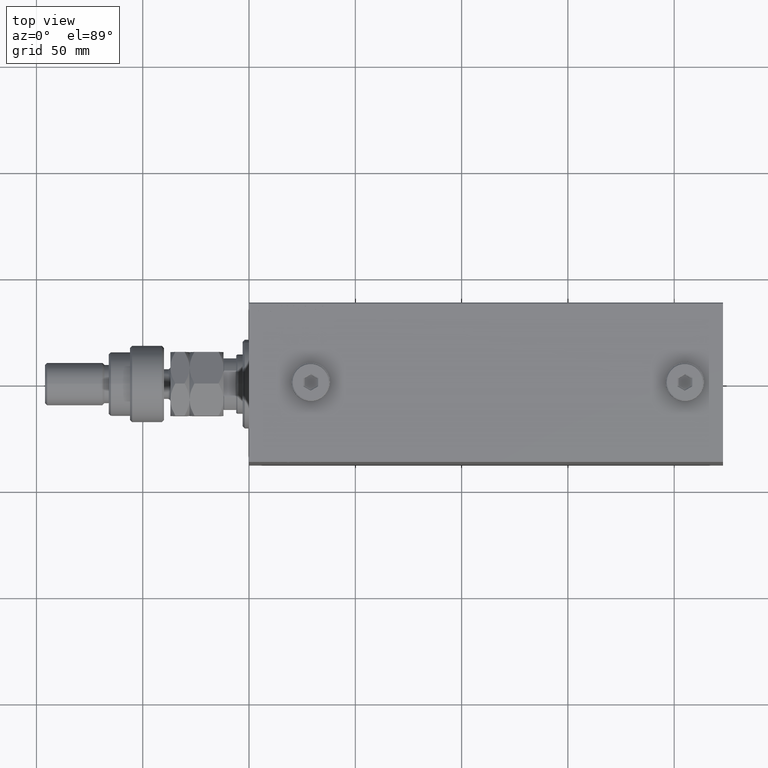
[diagram: clean part render]
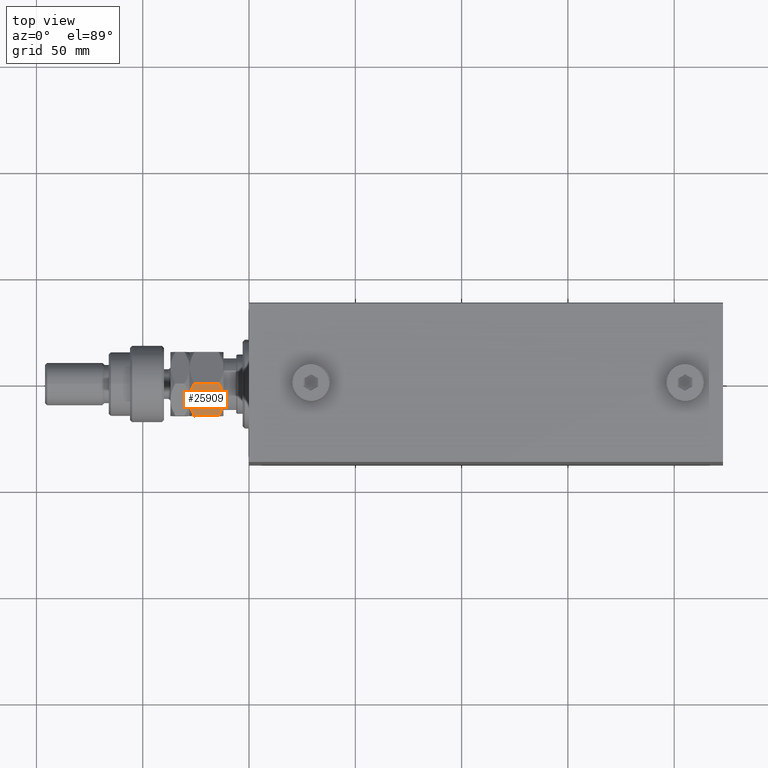
[diagram: same view with one face highlighted and labeled with its STEP entity id]
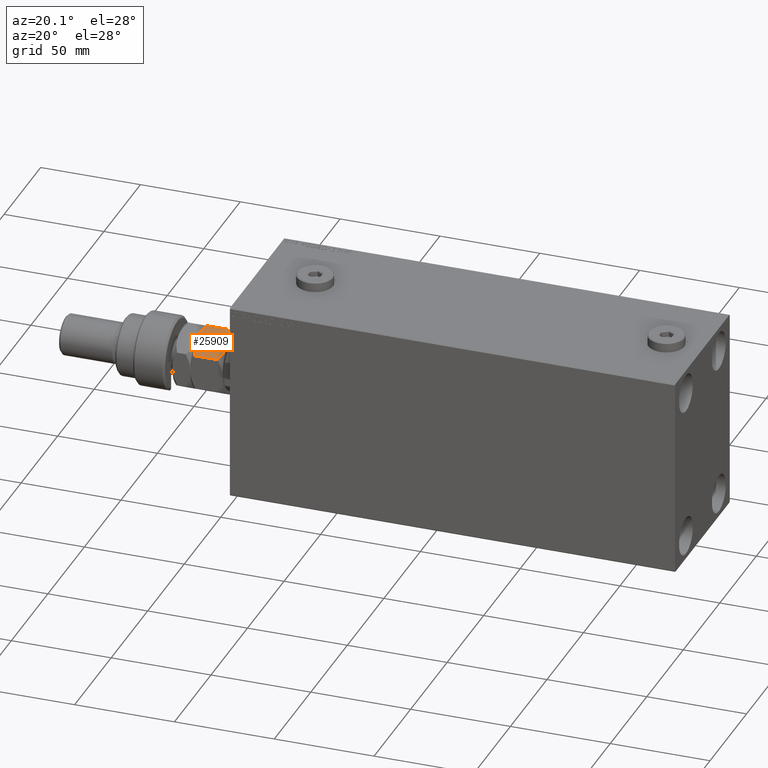
[diagram: same view with one face highlighted and labeled with its STEP entity id]
A machine part, top view. The second image highlights one B-rep face of the part: STEP entity #25909.
A second angle (auxiliary view) of the same face is appended — the face is thin or edge-on in the first view.
In plain terms, the highlighted planar face has unit normal (0, 0.5, -0.866).
Its self-contained STEP definition (entity closure, byte-faithful):
#139 = VERTEX_POINT ( 'NONE', #46562 ) ;
#825 = CARTESIAN_POINT ( 'NONE',  ( 15.00000000000000000, -7.301344312447432650, 14.32986304731390881 ) ) ;
#1970 = CARTESIAN_POINT ( 'NONE',  ( 14.99999999999999822, -3.735400403320778384, 0.4426250994506710779 ) ) ;
#2700 = CARTESIAN_POINT ( 'NONE',  ( 15.00000000000000178, -1.890862710942016411, 0.1142538058331598050 ) ) ;
#3649 = CARTESIAN_POINT ( 'NONE',  ( 15.00000000000000000, 5.178726290334375371, 15.14627300035555990 ) ) ;
#3758 = CARTESIAN_POINT ( 'NONE',  ( 15.00000000000000000, 8.660254037844389075, 2.320508075688765715 ) ) ;
#5622 = CARTESIAN_POINT ( 'NONE',  ( 15.00000000000000000, 0.000000000000000000, 0.000000000000000000 ) ) ;
#5880 = EDGE_CURVE ( 'NONE', #36856, #23334, #26425, .T. ) ;
#6170 = CARTESIAN_POINT ( 'NONE',  ( 15.00000000000000000, 1.890862710942010638, 15.88574619416683831 ) ) ;
#8204 = B_SPLINE_CURVE_WITH_KNOTS ( 'NONE', 3,
 ( #19511, #15850, #30957, #27538, #45809, #12440, #38975, #5622 ),
 .UNSPECIFIED., .F., .F.,
 ( 4, 2, 2, 4 ),
 ( 0.02387628527307377596, 0.02613482112973648797, 0.02839335698639919650, 0.03291042869972461704 ),
 .UNSPECIFIED. ) ;
#8370 = CARTESIAN_POINT ( 'NONE',  ( 15.00000000000000178, -5.891877557735398341, 14.89726549906047737 ) ) ;
#8534 = FACE_OUTER_BOUND ( 'NONE', #40603, .T. ) ;
#8611 = CARTESIAN_POINT ( 'NONE',  ( 15.00000000000000178, -7.987590979791838741, 14.01582345333751967 ) ) ;
#9739 = B_SPLINE_CURVE_WITH_KNOTS ( 'NONE', 3,
 ( #15091, #26056, #18990, #39518, #6170, #22396, #40668, #3649, #14610, #40908, #47072, #29726 ),
 .UNSPECIFIED., .F., .F.,
 ( 4, 2, 2, 2, 2, 4 ),
 ( 0.03291042869972460316, 0.03403908204310901464, 0.03516773538649342612, 0.03742504207326225601, 0.03968234876003107897, 0.04193965544679990887 ),
 .UNSPECIFIED. ) ;
#10014 = CARTESIAN_POINT ( 'NONE',  ( 15.00000000000000533, -7.300329060372333423, 1.669694153640836065 ) ) ;
#10485 = CARTESIAN_POINT ( 'NONE',  ( 15.00000000000000178, -0.3816858437404750393, -1.673737103774498062E-15 ) ) ;
#10603 = VERTEX_POINT ( 'NONE', #3758 ) ;
#10655 = EDGE_CURVE ( 'NONE', #38981, #47701, #25443, .T. ) ;
#10800 = ORIENTED_EDGE ( 'NONE', *, *, #10655, .F. ) ;
#11412 = CARTESIAN_POINT ( 'NONE',  ( 15.00000000000000000, -8.660254037844389075, 13.67949192431123961 ) ) ;
#12075 = CARTESIAN_POINT ( 'NONE',  ( 15.00000000000000000, -8.660254037844389075, 2.320508075688767047 ) ) ;
#12183 = PLANE ( 'NONE',  #43472 ) ;
#12440 = CARTESIAN_POINT ( 'NONE',  ( 15.00000000000000000, 3.008020699068711501, 0.2357602839062953870 ) ) ;
#12984 = VECTOR ( 'NONE', #14732, 1000.000000000000000 ) ;
#14610 = CARTESIAN_POINT ( 'NONE',  ( 15.00000000000000178, 5.890999289811421846, 14.89758491968458465 ) ) ;
#14732 = DIRECTION ( 'NONE',  ( -0.000000000000000000, -0.000000000000000000, -1.000000000000000000 ) ) ;
#15091 = CARTESIAN_POINT ( 'NONE',  ( 14.99999999999999645, 0.000000000000000000, 16.00000000000000000 ) ) ;
#15205 = CARTESIAN_POINT ( 'NONE',  ( 15.00000000000000000, 8.660254037844389075, 16.00000000000000000 ) ) ;
#15395 = EDGE_CURVE ( 'NONE', #47701, #139, #9739, .T. ) ;
#15680 = CARTESIAN_POINT ( 'NONE',  ( 15.00000000000000355, -5.176035048062459509, 15.14719616142216196 ) ) ;
#15850 = CARTESIAN_POINT ( 'NONE',  ( 15.00000000000000000, 7.987590979791842294, 1.984176546662486773 ) ) ;
#16056 = ORIENTED_EDGE ( 'NONE', *, *, #39546, .F. ) ;
#16086 = EDGE_CURVE ( 'NONE', #38981, #23334, #47381, .T. ) ;
#16596 = CARTESIAN_POINT ( 'NONE',  ( 15.00000000000000000, 0.000000000000000000, 0.000000000000000000 ) ) ;
#17803 = CARTESIAN_POINT ( 'NONE',  ( 15.00000000000000000, -5.890999289811427175, 1.102415080315421125 ) ) ;
#18990 = CARTESIAN_POINT ( 'NONE',  ( 15.00000000000000355, 0.7629267201675408172, 15.98531533915807934 ) ) ;
#19339 = CARTESIAN_POINT ( 'NONE',  ( 15.00000000000000000, -8.660254037844389075, 13.67949192431123961 ) ) ;
#19511 = CARTESIAN_POINT ( 'NONE',  ( 15.00000000000000000, 8.660254037844389075, 2.320508075688765715 ) ) ;
#21531 = VECTOR ( 'NONE', #43734, 1000.000000000000000 ) ;
#22396 = CARTESIAN_POINT ( 'NONE',  ( 15.00000000000000000, 3.004330627448758673, 15.71971113554880972 ) ) ;
#23334 = VERTEX_POINT ( 'NONE', #12075 ) ;
#24871 = CARTESIAN_POINT ( 'NONE',  ( 15.00000000000000000, -8.660254037844389075, 2.320508075688767047 ) ) ;
#25344 = CARTESIAN_POINT ( 'NONE',  ( 15.00000000000000000, -0.7629267201675461463, 0.01468466084192619932 ) ) ;
#25443 = B_SPLINE_CURVE_WITH_KNOTS ( 'NONE', 3,
 ( #19339, #8611, #825, #8370, #15680, #34674, #30557, #38320 ),
 .UNSPECIFIED., .F., .F.,
 ( 4, 2, 2, 4 ),
 ( 0.02387628527307377943, 0.02613482112973648450, 0.02839335698639919303, 0.03291042869972460316 ),
 .UNSPECIFIED. ) ;
#25909 = ADVANCED_FACE ( 'NONE', ( #8534 ), #12183, .F. ) ;
#26056 = CARTESIAN_POINT ( 'NONE',  ( 15.00000000000000178, 0.3816858437404682114, 16.00000000000001066 ) ) ;
#26425 = B_SPLINE_CURVE_WITH_KNOTS ( 'NONE', 3,
 ( #43134, #10485, #25344, #40190, #2700, #31697, #1970, #43614, #17803, #10014, #46547, #24871 ),
 .UNSPECIFIED., .F., .F.,
 ( 4, 2, 2, 2, 2, 4 ),
 ( 0.03291042869972461704, 0.03403908204310902852, 0.03516773538649344694, 0.03742504207326226989, 0.03968234876003109979, 0.04193965544679992274 ),
 .UNSPECIFIED. ) ;
#27538 = CARTESIAN_POINT ( 'NONE',  ( 14.99999999999999822, 5.891877557735396564, 1.102734500939527296 ) ) ;
#28889 = CARTESIAN_POINT ( 'NONE',  ( 15.00000000000000000, -8.660254037844389075, 16.00000000000000000 ) ) ;
#29346 = LINE ( 'NONE', #15205, #12984 ) ;
#29726 = CARTESIAN_POINT ( 'NONE',  ( 15.00000000000000000, 8.660254037844389075, 13.67949192431123784 ) ) ;
#30557 = CARTESIAN_POINT ( 'NONE',  ( 15.00000000000000533, -1.527574731641585526, 16.00000000000001066 ) ) ;
#30791 = ORIENTED_EDGE ( 'NONE', *, *, #15395, .F. ) ;
#30957 = CARTESIAN_POINT ( 'NONE',  ( 15.00000000000000178, 7.301344312447433538, 1.670136952686098741 ) ) ;
#31425 = DIRECTION ( 'NONE',  ( -1.000000000000000000, 0.000000000000000000, 0.000000000000000000 ) ) ;
#31697 = CARTESIAN_POINT ( 'NONE',  ( 15.00000000000000178, -3.004330627448764002, 0.2802888644511988825 ) ) ;
#34674 = CARTESIAN_POINT ( 'NONE',  ( 15.00000000000000533, -3.008020699068709725, 15.76423971609371222 ) ) ;
#36856 = VERTEX_POINT ( 'NONE', #16596 ) ;
#38320 = CARTESIAN_POINT ( 'NONE',  ( 14.99999999999999645, 0.000000000000000000, 16.00000000000000000 ) ) ;
#38964 = DIRECTION ( 'NONE',  ( 0.000000000000000000, 0.000000000000000000, 1.000000000000000000 ) ) ;
#38975 = CARTESIAN_POINT ( 'NONE',  ( 15.00000000000000178, 1.527574731641579753, -2.310705880109730931E-15 ) ) ;
#38981 = VERTEX_POINT ( 'NONE', #11412 ) ;
#39518 = CARTESIAN_POINT ( 'NONE',  ( 15.00000000000000000, 1.516896874073655477, 15.92818277676011007 ) ) ;
#39546 = EDGE_CURVE ( 'NONE', #10603, #36856, #8204, .T. ) ;
#40190 = CARTESIAN_POINT ( 'NONE',  ( 15.00000000000000178, -1.516896874073660584, 0.07181722323989220280 ) ) ;
#40603 = EDGE_LOOP ( 'NONE', ( #16056, #44524, #30791, #10800, #41291, #44616 ) ) ;
#40668 = CARTESIAN_POINT ( 'NONE',  ( 15.00000000000000000, 3.735400403320773055, 15.55737490054933403 ) ) ;
#40908 = CARTESIAN_POINT ( 'NONE',  ( 14.99999999999999645, 7.300329060372325429, 14.33030584635916860 ) ) ;
#41288 = EDGE_CURVE ( 'NONE', #139, #10603, #29346, .T. ) ;
#41291 = ORIENTED_EDGE ( 'NONE', *, *, #16086, .T. ) ;
#41662 = CARTESIAN_POINT ( 'NONE',  ( 15.00000000000000000, -8.660254037844389075, 16.00000000000000000 ) ) ;
#43134 = CARTESIAN_POINT ( 'NONE',  ( 15.00000000000000000, 0.000000000000000000, 0.000000000000000000 ) ) ;
#43472 = AXIS2_PLACEMENT_3D ( 'NONE', #41662, #31425, #38964 ) ;
#43614 = CARTESIAN_POINT ( 'NONE',  ( 14.99999999999999822, -5.178726290334377147, 0.8537269996444445397 ) ) ;
#43734 = DIRECTION ( 'NONE',  ( -0.000000000000000000, -0.000000000000000000, -1.000000000000000000 ) ) ;
#44524 = ORIENTED_EDGE ( 'NONE', *, *, #41288, .F. ) ;
#44616 = ORIENTED_EDGE ( 'NONE', *, *, #5880, .F. ) ;
#45809 = CARTESIAN_POINT ( 'NONE',  ( 15.00000000000000000, 5.176035048062463950, 0.8528038385778482500 ) ) ;
#46547 = CARTESIAN_POINT ( 'NONE',  ( 15.00000000000000178, -7.987879721624093321, 1.984320917578617616 ) ) ;
#46562 = CARTESIAN_POINT ( 'NONE',  ( 15.00000000000000000, 8.660254037844389075, 13.67949192431123784 ) ) ;
#46580 = CARTESIAN_POINT ( 'NONE',  ( 14.99999999999999645, 0.000000000000000000, 16.00000000000000000 ) ) ;
#47072 = CARTESIAN_POINT ( 'NONE',  ( 15.00000000000000533, 7.987879721624093321, 14.01567908242138927 ) ) ;
#47381 = LINE ( 'NONE', #28889, #21531 ) ;
#47701 = VERTEX_POINT ( 'NONE', #46580 ) ;